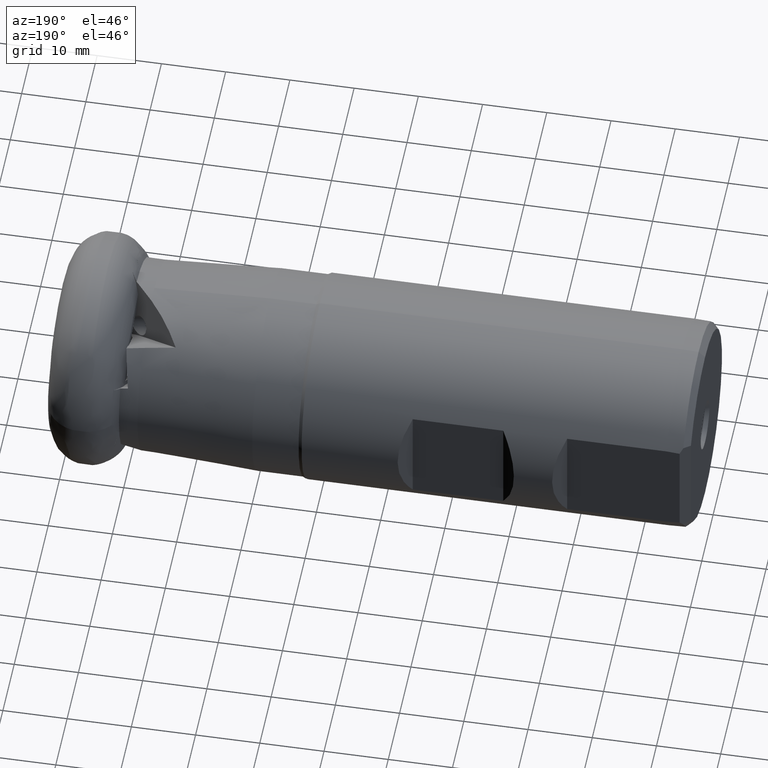
[diagram: clean part render]
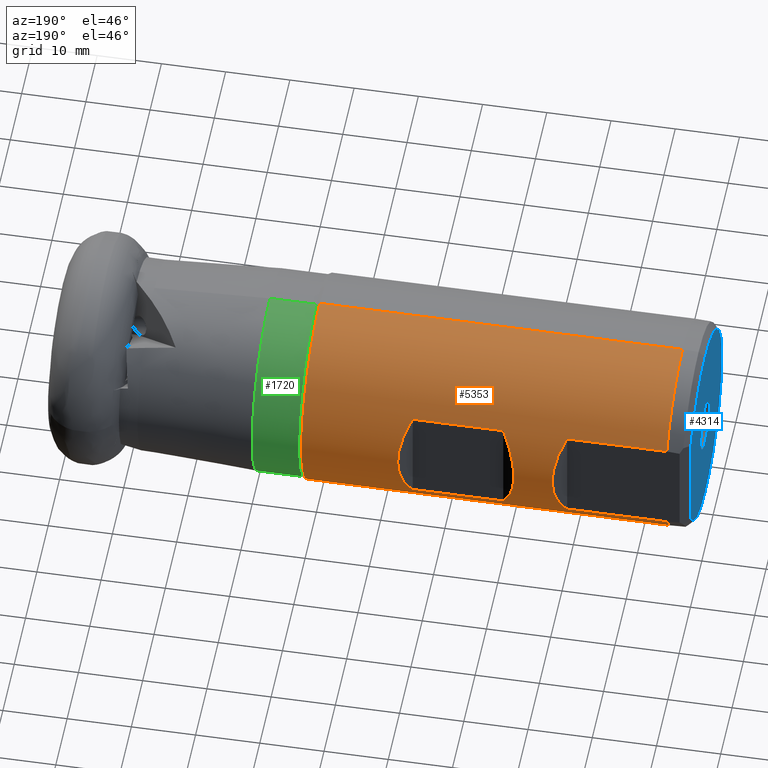
[diagram: same view with three faces highlighted in distinct colors, each labeled with its STEP entity id]
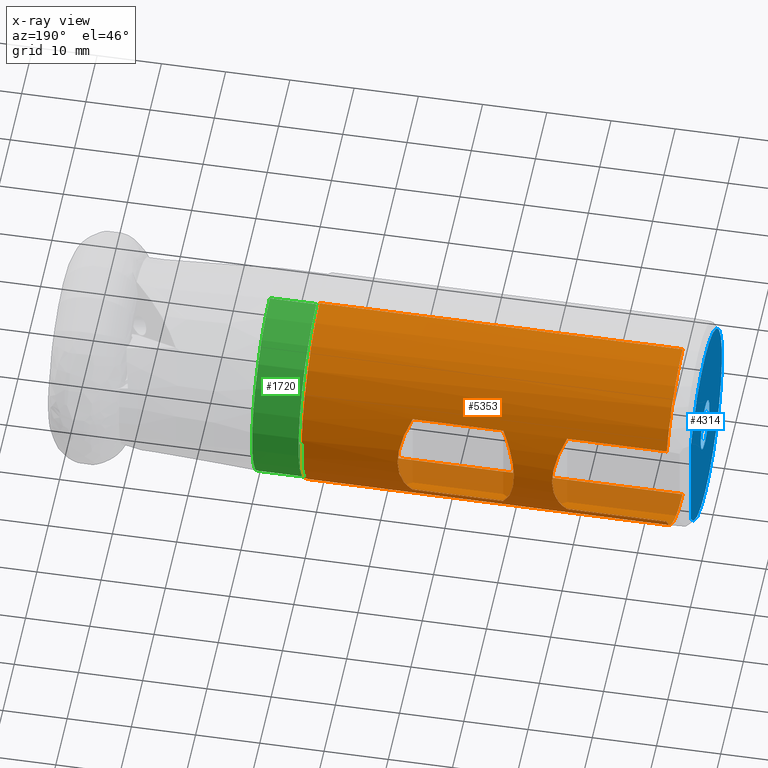
[diagram: x-ray of the same camera — body ghosted, the three highlighted faces saturated]
A machine part, auxiliary view with three faces highlighted in distinct colors.
The next image is the same camera in x-ray (body ghosted, the three faces saturated) — at least one of them is partly hidden behind the body in this view.
Their STEP definitions:

[orange] entity #5353 — the highlighted cylindrical surface (partial cylindrical patch) has radius 16 mm, axis along (1, -0, -0).
#23 = VERTEX_POINT ( 'NONE', #2120 ) ;
#232 = EDGE_CURVE ( 'NONE', #330, #4094, #5275, .T. ) ;
#260 = AXIS2_PLACEMENT_3D ( 'NONE', #334, #4097, #3142 ) ;
#327 = EDGE_CURVE ( 'NONE', #1218, #735, #646, .T. ) ;
#330 = VERTEX_POINT ( 'NONE', #1758 ) ;
#334 = CARTESIAN_POINT ( 'NONE',  ( 0.0000000000000000000, 0.0000000000000000000, 0.0000000000000000000 ) ) ;
#345 = VECTOR ( 'NONE', #2021, 1000.000000000000000 ) ;
#349 = DIRECTION ( 'NONE',  ( -1.000000000000000000, 0.0000000000000000000, 0.0000000000000000000 ) ) ;
#522 = EDGE_CURVE ( 'NONE', #3277, #934, #4939, .T. ) ;
#646 = CIRCLE ( 'NONE', #1421, 15.99999999999999300 ) ;
#735 = VERTEX_POINT ( 'NONE', #2618 ) ;
#750 = CIRCLE ( 'NONE', #5282, 15.99999999999998600 ) ;
#773 = DIRECTION ( 'NONE',  ( 1.000000000000000000, -0.0000000000000000000, -0.0000000000000000000 ) ) ;
#789 = VERTEX_POINT ( 'NONE', #5456 ) ;
#841 = EDGE_CURVE ( 'NONE', #789, #330, #3972, .T. ) ;
#854 = EDGE_CURVE ( 'NONE', #4621, #1218, #1786, .T. ) ;
#867 = CARTESIAN_POINT ( 'NONE',  ( -72.52727272727275900, 16.72727272727270900, 2.816715160878099100 ) ) ;
#934 = VERTEX_POINT ( 'NONE', #2316 ) ;
#1037 = ORIENTED_EDGE ( 'NONE', *, *, #232, .F. ) ;
#1216 = EDGE_CURVE ( 'NONE', #4621, #5589, #4935, .T. ) ;
#1218 = VERTEX_POINT ( 'NONE', #3082 ) ;
#1219 = VECTOR ( 'NONE', #4453, 1000.000000000000000 ) ;
#1236 = CARTESIAN_POINT ( 'NONE',  ( -95.25000000000000000, 1.959434878635763600E-015, 15.99999999999998600 ) ) ;
#1249 = EDGE_LOOP ( 'NONE', ( #2171, #3479, #1468, #5620, #1652, #5809, #5301, #3243 ) ) ;
#1329 = DIRECTION ( 'NONE',  ( 1.000000000000000000, -0.0000000000000000000, -0.0000000000000000000 ) ) ;
#1421 = AXIS2_PLACEMENT_3D ( 'NONE', #5540, #1329, #5992 ) ;
#1468 = ORIENTED_EDGE ( 'NONE', *, *, #327, .F. ) ;
#1477 = CARTESIAN_POINT ( 'NONE',  ( -95.25000000000000000, 14.00000000000002000, -7.745966692414777200 ) ) ;
#1638 = CARTESIAN_POINT ( 'NONE',  ( -1.387778780781447600E-015, 14.00000000000002000, -7.745966692414777200 ) ) ;
#1652 = ORIENTED_EDGE ( 'NONE', *, *, #1216, .T. ) ;
#1758 = CARTESIAN_POINT ( 'NONE',  ( -69.79999999999999700, 14.00000000000001200, -7.745966692414799400 ) ) ;
#1786 = LINE ( 'NONE', #3667, #2665 ) ;
#1928 = AXIS2_PLACEMENT_3D ( 'NONE', #4943, #773, #2103 ) ;
#2021 = DIRECTION ( 'NONE',  ( 1.000000000000000000, -0.0000000000000000000, -0.0000000000000000000 ) ) ;
#2068 = CARTESIAN_POINT ( 'NONE',  ( -79.75000000000000000, 14.00000000000001100, -7.745966692414778100 ) ) ;
#2069 = EDGE_CURVE ( 'NONE', #3277, #4312, #750, .T. ) ;
#2103 = DIRECTION ( 'NONE',  ( 0.0000000000000000000, 0.0000000000000000000, -1.000000000000000000 ) ) ;
#2120 = CARTESIAN_POINT ( 'NONE',  ( -55.70000000000000300, 14.00000000000001200, 7.745966692414778100 ) ) ;
#2146 = CARTESIAN_POINT ( 'NONE',  ( 0.0000000000000000000, 14.00000000000000900, -7.745966692414795900 ) ) ;
#2171 = ORIENTED_EDGE ( 'NONE', *, *, #2069, .T. ) ;
#2291 = VECTOR ( 'NONE', #4627, 1000.000000000000000 ) ;
#2316 = CARTESIAN_POINT ( 'NONE',  ( -79.75000000000000000, 14.00000000000001100, 7.745966692414778100 ) ) ;
#2447 =( BOUNDED_CURVE ( )  B_SPLINE_CURVE ( 3, ( #3441, #2558, #5298, #2978 ),
 .UNSPECIFIED., .F., .F. ) 
 B_SPLINE_CURVE_WITH_KNOTS ( ( 4, 4 ),
 ( 5.777824796895432200, 6.788545817463741200 ),
 .UNSPECIFIED. ) 
 CURVE ( )  GEOMETRIC_REPRESENTATION_ITEM ( )  RATIONAL_B_SPLINE_CURVE ( ( 1.000000000000000000, 0.9166666666666675200, 0.9166666666666675200, 1.000000000000000000 ) ) 
 REPRESENTATION_ITEM ( '' )  );
#2558 = CARTESIAN_POINT ( 'NONE',  ( -52.97272727272736100, 16.72727272727271200, 2.816715160878100900 ) ) ;
#2566 = ORIENTED_EDGE ( 'NONE', *, *, #3834, .F. ) ;
#2618 = CARTESIAN_POINT ( 'NONE',  ( -38.75000000000000700, 1.959434878635764300E-015, 15.99999999999999300 ) ) ;
#2644 = CARTESIAN_POINT ( 'NONE',  ( 0.0000000000000000000, 1.959434878635763900E-015, 15.99999999999998900 ) ) ;
#2665 = VECTOR ( 'NONE', #4198, 1000.000000000000000 ) ;
#2709 = EDGE_LOOP ( 'NONE', ( #1037, #4155, #4885, #2566 ) ) ;
#2836 = CARTESIAN_POINT ( 'NONE',  ( -1.387778780781447600E-015, 14.00000000000002000, 7.745966692414777200 ) ) ;
#2948 = LINE ( 'NONE', #2644, #3660 ) ;
#2978 = CARTESIAN_POINT ( 'NONE',  ( -55.70000000000000300, 14.00000000000001200, -7.745966692414792300 ) ) ;
#3082 = CARTESIAN_POINT ( 'NONE',  ( -38.75000000000000700, 0.0000000000000000000, -15.99999999999999300 ) ) ;
#3132 = VERTEX_POINT ( 'NONE', #2068 ) ;
#3142 = DIRECTION ( 'NONE',  ( 0.0000000000000000000, 0.0000000000000000000, -1.000000000000000000 ) ) ;
#3213 = EDGE_CURVE ( 'NONE', #23, #789, #2447, .T. ) ;
#3243 = ORIENTED_EDGE ( 'NONE', *, *, #522, .F. ) ;
#3277 = VERTEX_POINT ( 'NONE', #5378 ) ;
#3361 = DIRECTION ( 'NONE',  ( 0.0000000000000000000, 0.0000000000000000000, -1.000000000000000000 ) ) ;
#3417 = CARTESIAN_POINT ( 'NONE',  ( -72.52727272727277400, 16.72727272727270900, -2.816715160878110200 ) ) ;
#3434 = CARTESIAN_POINT ( 'NONE',  ( -95.25000000000000000, 0.0000000000000000000, -15.99999999999998600 ) ) ;
#3441 = CARTESIAN_POINT ( 'NONE',  ( -55.70000000000000300, 14.00000000000001200, 7.745966692414778100 ) ) ;
#3479 = ORIENTED_EDGE ( 'NONE', *, *, #4320, .T. ) ;
#3660 = VECTOR ( 'NONE', #4051, 1000.000000000000000 ) ;
#3667 = CARTESIAN_POINT ( 'NONE',  ( 0.0000000000000000000, 0.0000000000000000000, -15.99999999999998900 ) ) ;
#3834 = EDGE_CURVE ( 'NONE', #4094, #23, #5953, .T. ) ;
#3972 = LINE ( 'NONE', #2146, #2291 ) ;
#4031 = FACE_BOUND ( 'NONE', #2709, .T. ) ;
#4051 = DIRECTION ( 'NONE',  ( 1.000000000000000000, -0.0000000000000000000, -0.0000000000000000000 ) ) ;
#4094 = VERTEX_POINT ( 'NONE', #4686 ) ;
#4097 = DIRECTION ( 'NONE',  ( 1.000000000000000000, -0.0000000000000000000, -0.0000000000000000000 ) ) ;
#4155 = ORIENTED_EDGE ( 'NONE', *, *, #841, .F. ) ;
#4198 = DIRECTION ( 'NONE',  ( 1.000000000000000000, -0.0000000000000000000, -0.0000000000000000000 ) ) ;
#4280 = EDGE_CURVE ( 'NONE', #3132, #5589, #5761, .T. ) ;
#4312 = VERTEX_POINT ( 'NONE', #1236 ) ;
#4320 = EDGE_CURVE ( 'NONE', #4312, #735, #2948, .T. ) ;
#4402 = DIRECTION ( 'NONE',  ( 1.000000000000000000, -0.0000000000000000000, -0.0000000000000000000 ) ) ;
#4425 = CARTESIAN_POINT ( 'NONE',  ( -79.75000000000000000, 14.00000000000001100, 7.745966692414778100 ) ) ;
#4453 = DIRECTION ( 'NONE',  ( 1.000000000000000000, -0.0000000000000000000, -0.0000000000000000000 ) ) ;
#4467 = CARTESIAN_POINT ( 'NONE',  ( -77.02272727272736600, 16.72727272727270900, -2.816715160878100000 ) ) ;
#4621 = VERTEX_POINT ( 'NONE', #3434 ) ;
#4627 = DIRECTION ( 'NONE',  ( -1.000000000000000000, 0.0000000000000000000, 0.0000000000000000000 ) ) ;
#4686 = CARTESIAN_POINT ( 'NONE',  ( -69.79999999999999700, 14.00000000000001200, 7.745966692414785200 ) ) ;
#4854 =( BOUNDED_CURVE ( )  B_SPLINE_CURVE ( 3, ( #4425, #4963, #4467, #4925 ),
 .UNSPECIFIED., .F., .F. ) 
 B_SPLINE_CURVE_WITH_KNOTS ( ( 4, 4 ),
 ( 5.777824796895432200, 6.788545817463740300 ),
 .UNSPECIFIED. ) 
 CURVE ( )  GEOMETRIC_REPRESENTATION_ITEM ( )  RATIONAL_B_SPLINE_CURVE ( ( 1.000000000000000000, 0.9166666666666676300, 0.9166666666666676300, 1.000000000000000000 ) ) 
 REPRESENTATION_ITEM ( '' )  );
#4885 = ORIENTED_EDGE ( 'NONE', *, *, #3213, .F. ) ;
#4925 = CARTESIAN_POINT ( 'NONE',  ( -79.75000000000000000, 14.00000000000001100, -7.745966692414778100 ) ) ;
#4935 = CIRCLE ( 'NONE', #1928, 15.99999999999998600 ) ;
#4939 = LINE ( 'NONE', #2836, #345 ) ;
#4943 = CARTESIAN_POINT ( 'NONE',  ( -95.25000000000000000, 0.0000000000000000000, 0.0000000000000000000 ) ) ;
#4963 = CARTESIAN_POINT ( 'NONE',  ( -77.02272727272735200, 16.72727272727270900, 2.816715160878104500 ) ) ;
#5005 = VECTOR ( 'NONE', #349, 1000.000000000000000 ) ;
#5154 = EDGE_CURVE ( 'NONE', #934, #3132, #4854, .T. ) ;
#5275 =( BOUNDED_CURVE ( )  B_SPLINE_CURVE ( 3, ( #5873, #3417, #867, #6034 ),
 .UNSPECIFIED., .F., .T. ) 
 B_SPLINE_CURVE_WITH_KNOTS ( ( 4, 4 ),
 ( 2.636232143305638200, 3.646953163873947600 ),
 .UNSPECIFIED. ) 
 CURVE ( )  GEOMETRIC_REPRESENTATION_ITEM ( )  RATIONAL_B_SPLINE_CURVE ( ( 1.000000000000000000, 0.9166666666666675200, 0.9166666666666675200, 1.000000000000000000 ) ) 
 REPRESENTATION_ITEM ( '' )  );
#5282 = AXIS2_PLACEMENT_3D ( 'NONE', #5364, #4402, #3361 ) ;
#5298 = CARTESIAN_POINT ( 'NONE',  ( -52.97272727272736100, 16.72727272727270900, -2.816715160878111100 ) ) ;
#5301 = ORIENTED_EDGE ( 'NONE', *, *, #5154, .F. ) ;
#5353 = ADVANCED_FACE ( 'Fl�che9', ( #4031, #5537 ), #5388, .T. ) ;
#5364 = CARTESIAN_POINT ( 'NONE',  ( -95.25000000000000000, 0.0000000000000000000, 0.0000000000000000000 ) ) ;
#5378 = CARTESIAN_POINT ( 'NONE',  ( -95.25000000000000000, 14.00000000000001600, 7.745966692414775400 ) ) ;
#5388 = CYLINDRICAL_SURFACE ( 'NONE', #260, 15.99999999999998900 ) ;
#5456 = CARTESIAN_POINT ( 'NONE',  ( -55.70000000000000300, 14.00000000000001200, -7.745966692414792300 ) ) ;
#5537 = FACE_OUTER_BOUND ( 'NONE', #1249, .T. ) ;
#5540 = CARTESIAN_POINT ( 'NONE',  ( -38.75000000000000700, 0.0000000000000000000, 0.0000000000000000000 ) ) ;
#5589 = VERTEX_POINT ( 'NONE', #1477 ) ;
#5620 = ORIENTED_EDGE ( 'NONE', *, *, #854, .F. ) ;
#5761 = LINE ( 'NONE', #1638, #5005 ) ;
#5808 = CARTESIAN_POINT ( 'NONE',  ( 0.0000000000000000000, 14.00000000000000900, 7.745966692414795900 ) ) ;
#5809 = ORIENTED_EDGE ( 'NONE', *, *, #4280, .F. ) ;
#5873 = CARTESIAN_POINT ( 'NONE',  ( -69.79999999999999700, 14.00000000000001200, -7.745966692414799400 ) ) ;
#5953 = LINE ( 'NONE', #5808, #1219 ) ;
#5992 = DIRECTION ( 'NONE',  ( 0.0000000000000000000, 0.0000000000000000000, -1.000000000000000000 ) ) ;
#6034 = CARTESIAN_POINT ( 'NONE',  ( -69.79999999999999700, 14.00000000000001200, 7.745966692414785200 ) ) ;

[blue] entity #4314 — the highlighted planar face has unit normal (-1, 0, 0).
#52 = FACE_BOUND ( 'NONE', #1145, .T. ) ;
#147 = CARTESIAN_POINT ( 'NONE',  ( -98.75000000000000000, 12.49999999999999100, 8.109253973085310800 ) ) ;
#387 = VERTEX_POINT ( 'NONE', #3224 ) ;
#421 = CARTESIAN_POINT ( 'NONE',  ( -98.75000000000000000, 0.0000000000000000000, 0.0000000000000000000 ) ) ;
#536 = DIRECTION ( 'NONE',  ( 1.000000000000000000, -0.0000000000000000000, -0.0000000000000000000 ) ) ;
#691 = EDGE_CURVE ( 'NONE', #4614, #3108, #3228, .T. ) ;
#837 = PLANE ( 'NONE',  #5506 ) ;
#882 = DIRECTION ( 'NONE',  ( 0.0000000000000000000, 0.0000000000000000000, -1.000000000000000000 ) ) ;
#915 = CIRCLE ( 'NONE', #4349, 14.89999999999998800 ) ;
#1123 = ORIENTED_EDGE ( 'NONE', *, *, #2973, .F. ) ;
#1145 = EDGE_LOOP ( 'NONE', ( #5052, #3424 ) ) ;
#1227 = EDGE_CURVE ( 'NONE', #3108, #4165, #915, .T. ) ;
#1709 = DIRECTION ( 'NONE',  ( 0.0000000000000000000, 0.0000000000000000000, -1.000000000000000000 ) ) ;
#1857 = CIRCLE ( 'NONE', #2468, 14.89999999999998800 ) ;
#1924 = DIRECTION ( 'NONE',  ( 0.0000000000000000000, 0.0000000000000000000, -1.000000000000000000 ) ) ;
#2151 = DIRECTION ( 'NONE',  ( 0.0000000000000000000, 0.0000000000000000000, 1.000000000000000000 ) ) ;
#2176 = ORIENTED_EDGE ( 'NONE', *, *, #4016, .F. ) ;
#2468 = AXIS2_PLACEMENT_3D ( 'NONE', #421, #3647, #882 ) ;
#2539 = ORIENTED_EDGE ( 'NONE', *, *, #691, .F. ) ;
#2597 = FACE_OUTER_BOUND ( 'NONE', #5222, .T. ) ;
#2657 = CIRCLE ( 'NONE', #2684, 3.827350269189615100 ) ;
#2684 = AXIS2_PLACEMENT_3D ( 'NONE', #3338, #3772, #5714 ) ;
#2973 = EDGE_CURVE ( 'NONE', #4165, #4412, #3002, .T. ) ;
#3002 = CIRCLE ( 'NONE', #3021, 14.89999999999998800 ) ;
#3021 = AXIS2_PLACEMENT_3D ( 'NONE', #5260, #536, #1924 ) ;
#3059 = EDGE_CURVE ( 'NONE', #3742, #387, #2657, .T. ) ;
#3097 = DIRECTION ( 'NONE',  ( -1.000000000000000000, 0.0000000000000000000, 0.0000000000000000000 ) ) ;
#3108 = VERTEX_POINT ( 'NONE', #147 ) ;
#3113 = DIRECTION ( 'NONE',  ( -0.0000000000000000000, -0.0000000000000000000, 1.000000000000000000 ) ) ;
#3130 = CARTESIAN_POINT ( 'NONE',  ( -98.75000000000000000, 12.49999999999999100, -25.00000000000000000 ) ) ;
#3224 = CARTESIAN_POINT ( 'NONE',  ( -98.75000000000000000, 4.687152256378822200E-016, -3.827350269189615100 ) ) ;
#3228 = LINE ( 'NONE', #3130, #5319 ) ;
#3338 = CARTESIAN_POINT ( 'NONE',  ( -98.75000000000000000, 0.0000000000000000000, 0.0000000000000000000 ) ) ;
#3424 = ORIENTED_EDGE ( 'NONE', *, *, #5403, .T. ) ;
#3508 = CARTESIAN_POINT ( 'NONE',  ( -98.75000000000000000, 0.0000000000000000000, 0.0000000000000000000 ) ) ;
#3647 = DIRECTION ( 'NONE',  ( 1.000000000000000000, -0.0000000000000000000, -0.0000000000000000000 ) ) ;
#3722 = CARTESIAN_POINT ( 'NONE',  ( -98.75000000000000000, 1.885956070686923400E-015, 14.89999999999998800 ) ) ;
#3742 = VERTEX_POINT ( 'NONE', #4322 ) ;
#3772 = DIRECTION ( 'NONE',  ( 1.000000000000000000, -0.0000000000000000000, -0.0000000000000000000 ) ) ;
#4016 = EDGE_CURVE ( 'NONE', #4412, #4614, #1857, .T. ) ;
#4068 = CARTESIAN_POINT ( 'NONE',  ( -98.75000000000000000, 14.89999999999998800, 0.0000000000000000000 ) ) ;
#4106 = CIRCLE ( 'NONE', #5472, 3.827350269189615100 ) ;
#4165 = VERTEX_POINT ( 'NONE', #3722 ) ;
#4314 = ADVANCED_FACE ( 'NONE', ( #2597, #52 ), #837, .T. ) ;
#4322 = CARTESIAN_POINT ( 'NONE',  ( -98.75000000000000000, 0.0000000000000000000, 3.827350269189615100 ) ) ;
#4349 = AXIS2_PLACEMENT_3D ( 'NONE', #3508, #5447, #1709 ) ;
#4412 = VERTEX_POINT ( 'NONE', #5439 ) ;
#4465 = ORIENTED_EDGE ( 'NONE', *, *, #1227, .F. ) ;
#4614 = VERTEX_POINT ( 'NONE', #4771 ) ;
#4677 = CARTESIAN_POINT ( 'NONE',  ( -98.75000000000000000, 0.0000000000000000000, 0.0000000000000000000 ) ) ;
#4771 = CARTESIAN_POINT ( 'NONE',  ( -98.75000000000000000, 12.49999999999999100, -8.109253973085310800 ) ) ;
#5052 = ORIENTED_EDGE ( 'NONE', *, *, #3059, .T. ) ;
#5130 = DIRECTION ( 'NONE',  ( 0.0000000000000000000, 0.0000000000000000000, -1.000000000000000000 ) ) ;
#5150 = DIRECTION ( 'NONE',  ( 1.000000000000000000, -0.0000000000000000000, -0.0000000000000000000 ) ) ;
#5222 = EDGE_LOOP ( 'NONE', ( #2539, #2176, #1123, #4465 ) ) ;
#5260 = CARTESIAN_POINT ( 'NONE',  ( -98.75000000000000000, 0.0000000000000000000, 0.0000000000000000000 ) ) ;
#5319 = VECTOR ( 'NONE', #3113, 1000.000000000000000 ) ;
#5403 = EDGE_CURVE ( 'NONE', #387, #3742, #4106, .T. ) ;
#5439 = CARTESIAN_POINT ( 'NONE',  ( -98.75000000000000000, 0.0000000000000000000, -14.89999999999998800 ) ) ;
#5447 = DIRECTION ( 'NONE',  ( 1.000000000000000000, -0.0000000000000000000, -0.0000000000000000000 ) ) ;
#5472 = AXIS2_PLACEMENT_3D ( 'NONE', #4677, #5150, #5130 ) ;
#5506 = AXIS2_PLACEMENT_3D ( 'NONE', #4068, #3097, #2151 ) ;
#5714 = DIRECTION ( 'NONE',  ( 0.0000000000000000000, 0.0000000000000000000, -1.000000000000000000 ) ) ;

[green] entity #1720 — the highlighted cylindrical surface (partial cylindrical patch) has radius 15.7 mm, axis along (1, -0, -0).
#184 = CARTESIAN_POINT ( 'NONE',  ( -38.23038475772932500, 1.941065176648554300E-015, -15.69999999999999600 ) ) ;
#220 = VERTEX_POINT ( 'NONE', #184 ) ;
#273 = CYLINDRICAL_SURFACE ( 'NONE', #4710, 15.69999999999999600 ) ;
#681 = CARTESIAN_POINT ( 'NONE',  ( 0.0000000000000000000, 0.0000000000000000000, 0.0000000000000000000 ) ) ;
#778 = CARTESIAN_POINT ( 'NONE',  ( -31.00000000000000000, 1.922695474661343500E-015, -15.69999999999999600 ) ) ;
#1081 = DIRECTION ( 'NONE',  ( 0.0000000000000000000, 0.0000000000000000000, -1.000000000000000000 ) ) ;
#1085 = EDGE_CURVE ( 'NONE', #3980, #5436, #2599, .T. ) ;
#1155 = ORIENTED_EDGE ( 'NONE', *, *, #1085, .F. ) ;
#1192 = DIRECTION ( 'NONE',  ( 1.000000000000000000, -0.0000000000000000000, -0.0000000000000000000 ) ) ;
#1499 = DIRECTION ( 'NONE',  ( 1.000000000000000000, -0.0000000000000000000, -0.0000000000000000000 ) ) ;
#1514 = DIRECTION ( 'NONE',  ( 0.0000000000000000000, 0.0000000000000000000, -1.000000000000000000 ) ) ;
#1636 = CIRCLE ( 'NONE', #2201, 15.69999999999999600 ) ;
#1720 = ADVANCED_FACE ( 'NONE', ( #4777 ), #273, .T. ) ;
#1765 = CARTESIAN_POINT ( 'NONE',  ( -38.23038475772932500, 0.0000000000000000000, 15.69999999999999600 ) ) ;
#1803 = CARTESIAN_POINT ( 'NONE',  ( -31.00000000000000000, 0.0000000000000000000, 15.69999999999999600 ) ) ;
#1966 = DIRECTION ( 'NONE',  ( 0.0000000000000000000, 0.0000000000000000000, -1.000000000000000000 ) ) ;
#2201 = AXIS2_PLACEMENT_3D ( 'NONE', #3774, #1499, #1966 ) ;
#2343 = LINE ( 'NONE', #4033, #5818 ) ;
#2585 = EDGE_LOOP ( 'NONE', ( #4985, #4998, #1155, #5401 ) ) ;
#2599 = CIRCLE ( 'NONE', #3903, 15.69999999999999600 ) ;
#2717 = EDGE_CURVE ( 'NONE', #5362, #5436, #4967, .T. ) ;
#3369 = EDGE_CURVE ( 'NONE', #220, #3980, #2343, .T. ) ;
#3774 = CARTESIAN_POINT ( 'NONE',  ( -38.23038475772932500, 0.0000000000000000000, 0.0000000000000000000 ) ) ;
#3848 = DIRECTION ( 'NONE',  ( 1.000000000000000000, -0.0000000000000000000, -0.0000000000000000000 ) ) ;
#3903 = AXIS2_PLACEMENT_3D ( 'NONE', #5757, #3848, #1081 ) ;
#3980 = VERTEX_POINT ( 'NONE', #778 ) ;
#4033 = CARTESIAN_POINT ( 'NONE',  ( 0.0000000000000000000, 0.0000000000000000000, -15.69999999999999600 ) ) ;
#4710 = AXIS2_PLACEMENT_3D ( 'NONE', #681, #4835, #1514 ) ;
#4777 = FACE_OUTER_BOUND ( 'NONE', #2585, .T. ) ;
#4835 = DIRECTION ( 'NONE',  ( 1.000000000000000000, -0.0000000000000000000, -0.0000000000000000000 ) ) ;
#4967 = LINE ( 'NONE', #5946, #6010 ) ;
#4985 = ORIENTED_EDGE ( 'NONE', *, *, #5607, .T. ) ;
#4998 = ORIENTED_EDGE ( 'NONE', *, *, #2717, .T. ) ;
#5362 = VERTEX_POINT ( 'NONE', #1765 ) ;
#5401 = ORIENTED_EDGE ( 'NONE', *, *, #3369, .F. ) ;
#5436 = VERTEX_POINT ( 'NONE', #1803 ) ;
#5548 = DIRECTION ( 'NONE',  ( 1.000000000000000000, -0.0000000000000000000, -0.0000000000000000000 ) ) ;
#5607 = EDGE_CURVE ( 'NONE', #220, #5362, #1636, .T. ) ;
#5757 = CARTESIAN_POINT ( 'NONE',  ( -31.00000000000000000, 0.0000000000000000000, 0.0000000000000000000 ) ) ;
#5818 = VECTOR ( 'NONE', #1192, 1000.000000000000000 ) ;
#5946 = CARTESIAN_POINT ( 'NONE',  ( 0.0000000000000000000, 1.922695474661343900E-015, 15.69999999999999600 ) ) ;
#6010 = VECTOR ( 'NONE', #5548, 1000.000000000000000 ) ;